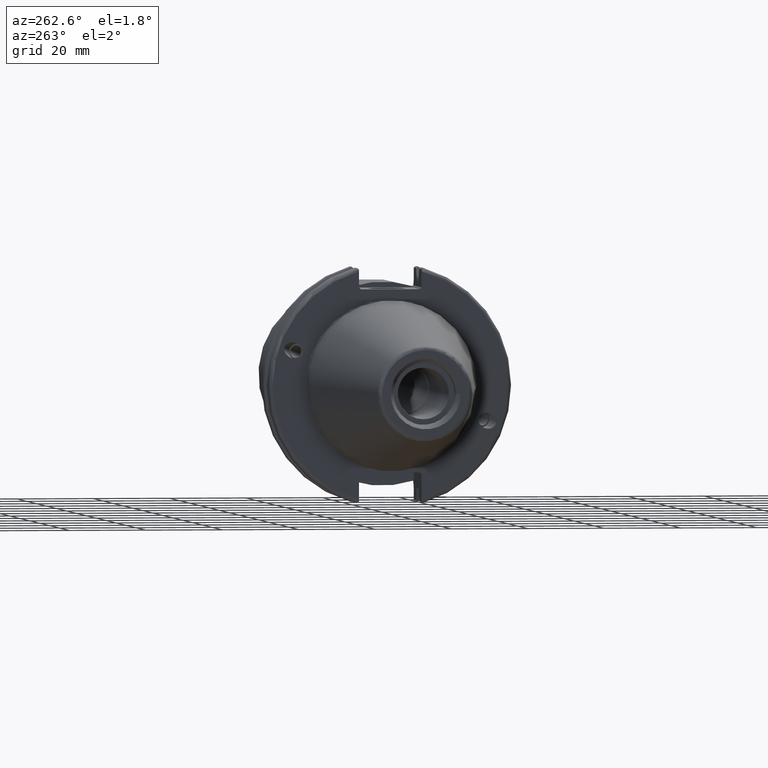
[diagram: clean part render]
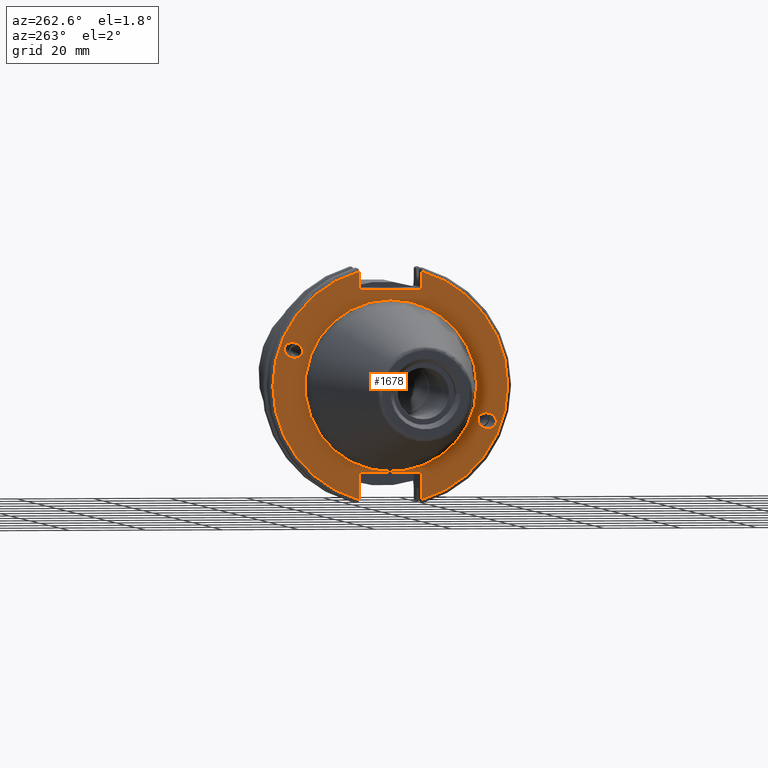
[diagram: same view with one face highlighted and labeled with its STEP entity id]
A machine part, auxiliary view. The second image highlights one B-rep face of the part: STEP entity #1678.
In plain terms, the highlighted planar face has unit normal (-1, 0, 0).
Its self-contained STEP definition (entity closure, byte-faithful):
#135=LINE('',#3006,#237);
#136=LINE('',#3008,#238);
#137=LINE('',#3010,#239);
#138=LINE('',#3012,#240);
#139=LINE('',#3014,#241);
#140=LINE('',#3018,#242);
#141=LINE('',#3020,#243);
#142=LINE('',#3022,#244);
#143=LINE('',#3024,#245);
#144=LINE('',#3025,#246);
#237=VECTOR('',#2258,10.);
#238=VECTOR('',#2259,10.);
#239=VECTOR('',#2260,10.);
#240=VECTOR('',#2261,10.);
#241=VECTOR('',#2262,10.);
#242=VECTOR('',#2265,10.);
#243=VECTOR('',#2266,10.);
#244=VECTOR('',#2267,10.);
#245=VECTOR('',#2268,10.);
#246=VECTOR('',#2269,10.);
#326=FACE_BOUND('',#553,.T.);
#327=FACE_BOUND('',#554,.T.);
#328=FACE_BOUND('',#555,.T.);
#342=ELLIPSE('',#1820,2.44154917752292,2.00000000000001);
#351=ELLIPSE('',#1863,2.44154917752292,2.00000000000001);
#369=PLANE('',#1873);
#445=FACE_OUTER_BOUND('',#552,.T.);
#552=EDGE_LOOP('',(#1366,#1367,#1368,#1369,#1370,#1371,#1372,#1373,#1374,
#1375,#1376,#1377));
#553=EDGE_LOOP('',(#1378));
#554=EDGE_LOOP('',(#1379));
#555=EDGE_LOOP('',(#1380));
#657=CIRCLE('',#1871,22.3);
#659=CIRCLE('',#1874,30.75);
#660=CIRCLE('',#1875,30.75);
#753=VERTEX_POINT('',#2799);
#793=VERTEX_POINT('',#2982);
#798=VERTEX_POINT('',#2997);
#799=VERTEX_POINT('',#3002);
#800=VERTEX_POINT('',#3003);
#801=VERTEX_POINT('',#3005);
#802=VERTEX_POINT('',#3007);
#803=VERTEX_POINT('',#3009);
#804=VERTEX_POINT('',#3011);
#805=VERTEX_POINT('',#3013);
#806=VERTEX_POINT('',#3015);
#807=VERTEX_POINT('',#3017);
#808=VERTEX_POINT('',#3019);
#809=VERTEX_POINT('',#3021);
#810=VERTEX_POINT('',#3023);
#946=EDGE_CURVE('',#753,#753,#342,.T.);
#1002=EDGE_CURVE('',#793,#793,#351,.T.);
#1009=EDGE_CURVE('',#798,#798,#657,.T.);
#1011=EDGE_CURVE('',#799,#800,#659,.T.);
#1012=EDGE_CURVE('',#799,#801,#135,.T.);
#1013=EDGE_CURVE('',#802,#801,#136,.T.);
#1014=EDGE_CURVE('',#802,#803,#137,.T.);
#1015=EDGE_CURVE('',#804,#803,#138,.T.);
#1016=EDGE_CURVE('',#804,#805,#139,.T.);
#1017=EDGE_CURVE('',#806,#805,#660,.T.);
#1018=EDGE_CURVE('',#806,#807,#140,.T.);
#1019=EDGE_CURVE('',#808,#807,#141,.T.);
#1020=EDGE_CURVE('',#808,#809,#142,.T.);
#1021=EDGE_CURVE('',#810,#809,#143,.T.);
#1022=EDGE_CURVE('',#810,#800,#144,.T.);
#1366=ORIENTED_EDGE('',*,*,#1011,.F.);
#1367=ORIENTED_EDGE('',*,*,#1012,.T.);
#1368=ORIENTED_EDGE('',*,*,#1013,.F.);
#1369=ORIENTED_EDGE('',*,*,#1014,.T.);
#1370=ORIENTED_EDGE('',*,*,#1015,.F.);
#1371=ORIENTED_EDGE('',*,*,#1016,.T.);
#1372=ORIENTED_EDGE('',*,*,#1017,.F.);
#1373=ORIENTED_EDGE('',*,*,#1018,.T.);
#1374=ORIENTED_EDGE('',*,*,#1019,.F.);
#1375=ORIENTED_EDGE('',*,*,#1020,.T.);
#1376=ORIENTED_EDGE('',*,*,#1021,.F.);
#1377=ORIENTED_EDGE('',*,*,#1022,.T.);
#1378=ORIENTED_EDGE('',*,*,#946,.T.);
#1379=ORIENTED_EDGE('',*,*,#1002,.T.);
#1380=ORIENTED_EDGE('',*,*,#1009,.F.);
#1678=ADVANCED_FACE('',(#445,#326,#327,#328),#369,.T.);
#1820=AXIS2_PLACEMENT_3D('',#2801,#2129,#2130);
#1863=AXIS2_PLACEMENT_3D('',#2984,#2232,#2233);
#1871=AXIS2_PLACEMENT_3D('',#2999,#2250,#2251);
#1873=AXIS2_PLACEMENT_3D('',#3001,#2254,#2255);
#1874=AXIS2_PLACEMENT_3D('',#3004,#2256,#2257);
#1875=AXIS2_PLACEMENT_3D('',#3016,#2263,#2264);
#2129=DIRECTION('center_axis',(1.,0.,0.));
#2130=DIRECTION('ref_axis',(5.68400912649E-17,-0.939692620785909,-0.342020143325667));
#2232=DIRECTION('center_axis',(1.,0.,0.));
#2233=DIRECTION('ref_axis',(5.68400912649E-17,0.939692620785909,0.342020143325667));
#2250=DIRECTION('center_axis',(-1.,0.,0.));
#2251=DIRECTION('ref_axis',(0.,-1.,1.83697019872103E-16));
#2254=DIRECTION('center_axis',(-1.,0.,0.));
#2255=DIRECTION('ref_axis',(0.,0.,1.));
#2256=DIRECTION('center_axis',(1.,0.,0.));
#2257=DIRECTION('ref_axis',(0.,-1.,1.60812264967664E-16));
#2258=DIRECTION('',(0.,0.,-1.));
#2259=DIRECTION('',(0.,-0.70710678118655,0.707106781186545));
#2260=DIRECTION('',(0.,1.,0.));
#2261=DIRECTION('',(0.,-0.707106781186549,-0.707106781186546));
#2262=DIRECTION('',(0.,0.,1.));
#2263=DIRECTION('center_axis',(1.,0.,0.));
#2264=DIRECTION('ref_axis',(0.,1.,1.60812264967664E-16));
#2265=DIRECTION('',(0.,0.,1.));
#2266=DIRECTION('',(0.,0.707106781186549,-0.707106781186546));
#2267=DIRECTION('',(0.,-1.,0.));
#2268=DIRECTION('',(0.,0.707106781186549,0.707106781186546));
#2269=DIRECTION('',(0.,0.,-1.));
#2799=CARTESIAN_POINT('',(3.175,-23.0773950158153,-8.39948487016));
#2801=CARTESIAN_POINT('Origin',(3.175,-25.3717007612195,-9.23454386979305));
#2982=CARTESIAN_POINT('',(3.175,23.0773950158153,8.39948487016));
#2984=CARTESIAN_POINT('Origin',(3.175,25.3717007612195,9.23454386979306));
#2997=CARTESIAN_POINT('',(3.175,-2.7309623620986E-15,22.3));
#2999=CARTESIAN_POINT('Origin',(3.175,0.,0.));
#3001=CARTESIAN_POINT('Origin',(3.175,31.75,0.));
#3002=CARTESIAN_POINT('',(3.175,-8.18999999999999,29.6392712461019));
#3003=CARTESIAN_POINT('',(3.175,-8.19,-29.6392712461019));
#3004=CARTESIAN_POINT('Origin',(3.175,0.,0.));
#3005=CARTESIAN_POINT('',(3.175,-8.18999999999999,25.5));
#3006=CARTESIAN_POINT('',(3.175,-8.18999999999999,12.5));
#3007=CARTESIAN_POINT('',(3.175,-7.68999999999999,25.));
#3008=CARTESIAN_POINT('',(3.175,8.29500000000007,9.01500000000004));
#3009=CARTESIAN_POINT('',(3.175,7.69,25.));
#3010=CARTESIAN_POINT('',(3.175,15.875,25.));
#3011=CARTESIAN_POINT('',(3.175,8.19,25.5));
#3012=CARTESIAN_POINT('',(3.175,7.58000000000002,24.89));
#3013=CARTESIAN_POINT('',(3.175,8.19,29.6392712461019));
#3014=CARTESIAN_POINT('',(3.175,8.19,12.5));
#3015=CARTESIAN_POINT('',(3.175,8.18999999999999,-29.6392712461019));
#3016=CARTESIAN_POINT('Origin',(3.175,0.,0.));
#3017=CARTESIAN_POINT('',(3.175,8.18999999999999,-23.1));
#3018=CARTESIAN_POINT('',(3.175,8.18999999999999,-11.3));
#3019=CARTESIAN_POINT('',(3.175,7.69,-22.6));
#3020=CARTESIAN_POINT('',(3.175,8.18000000000002,-23.09));
#3021=CARTESIAN_POINT('',(3.175,-7.69,-22.6));
#3022=CARTESIAN_POINT('',(3.175,15.875,-22.6));
#3023=CARTESIAN_POINT('',(3.175,-8.19,-23.1));
#3024=CARTESIAN_POINT('',(3.175,7.69500000000004,-7.21500000000002));
#3025=CARTESIAN_POINT('',(3.175,-8.19,-11.3));